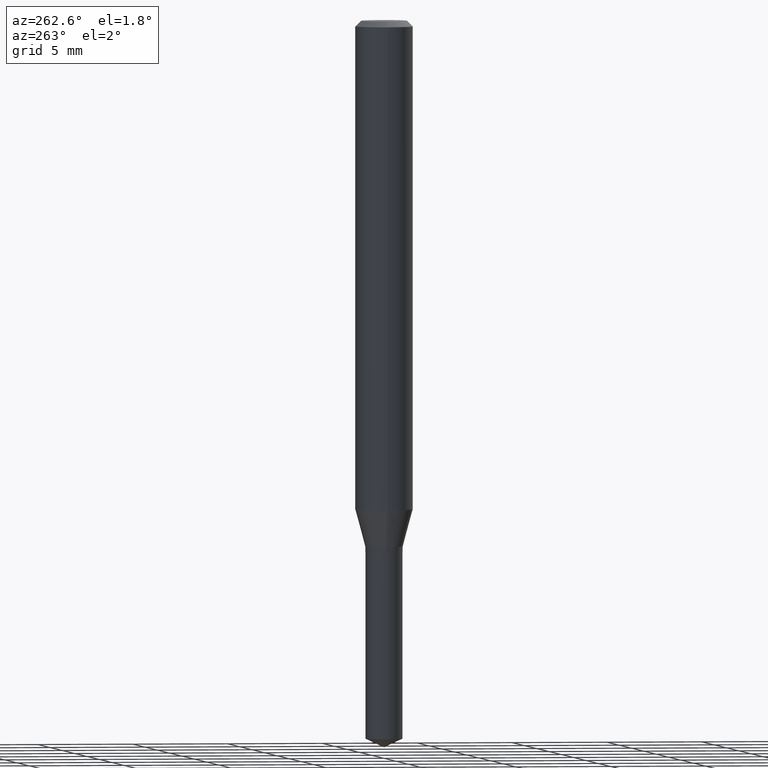
[diagram: clean part render]
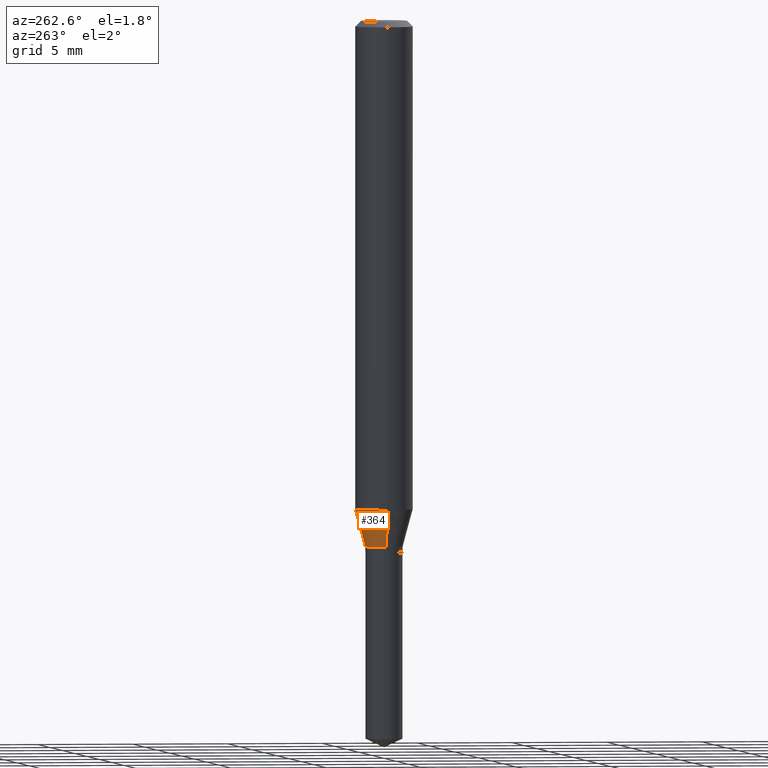
[diagram: same view with one face highlighted and labeled with its STEP entity id]
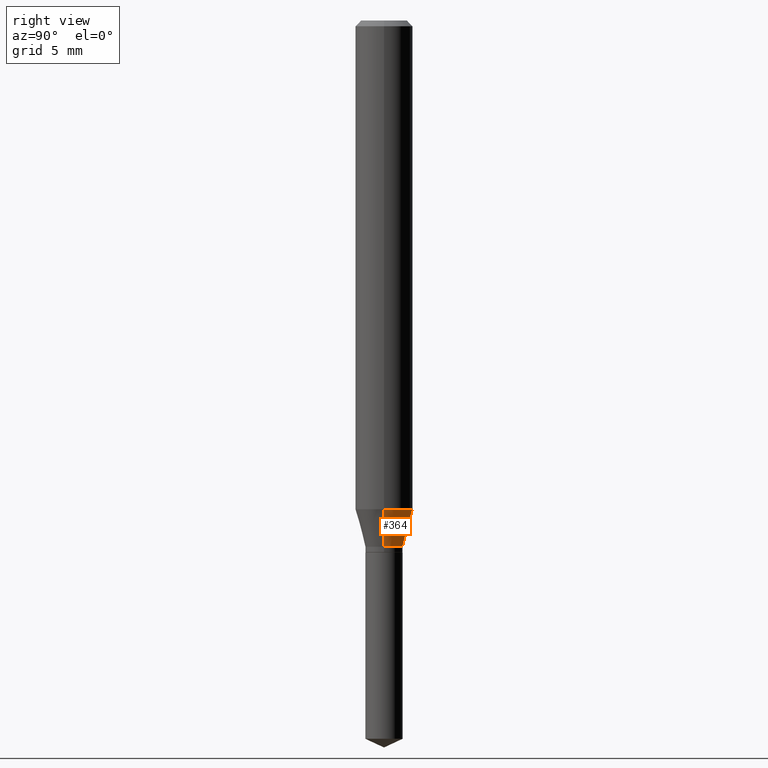
[diagram: same view with one face highlighted and labeled with its STEP entity id]
A machine part, auxiliary view. The second image highlights one B-rep face of the part: STEP entity #364.
A second angle (right view) of the same face is appended — the face is thin or edge-on in the first view.
In plain terms, the highlighted conical surface has half-angle 15 deg.
Its self-contained STEP definition (entity closure, byte-faithful):
#6 = DIRECTION ( 'NONE',  ( -2.445468806185136597E-29, 3.491481338843145583E-15, 1.000000000000000000 ) ) ;
#7 = LINE ( 'NONE', #43, #109 ) ;
#18 = VERTEX_POINT ( 'NONE', #154 ) ;
#38 = CONICAL_SURFACE ( 'NONE', #319, 0.03840000000000000357, 0.2617993877991499074 ) ;
#39 = EDGE_CURVE ( 'NONE', #18, #333, #65, .T. ) ;
#43 = CARTESIAN_POINT ( 'NONE',  ( -0.03840000000000000357, -3.508425879435247821E-15, -1.082999999999999963 ) ) ;
#65 = LINE ( 'NONE', #298, #487 ) ;
#75 = DIRECTION ( 'NONE',  ( 1.000000000000000000, -6.982962677686266711E-15, 0.000000000000000000 ) ) ;
#78 = EDGE_LOOP ( 'NONE', ( #288, #245, #180, #210 ) ) ;
#80 = CARTESIAN_POINT ( 'NONE',  ( 2.459978141446892264E-29, -3.512196824224644331E-15, -1.005933150823702382 ) ) ;
#109 = VECTOR ( 'NONE', #349, 39.37007874015748854 ) ;
#131 = CARTESIAN_POINT ( 'NONE',  ( -0.05905000000000011628, -3.092621338758304049E-15, -1.005933150823702382 ) ) ;
#149 = DIRECTION ( 'NONE',  ( 1.000000000000000000, -6.982962677686264344E-15, 0.000000000000000000 ) ) ;
#154 = CARTESIAN_POINT ( 'NONE',  ( 0.03840000000000000357, -4.049420056790279028E-15, -1.082999999999999963 ) ) ;
#163 = EDGE_CURVE ( 'NONE', #472, #469, #7, .T. ) ;
#180 = ORIENTED_EDGE ( 'NONE', *, *, #318, .F. ) ;
#210 = ORIENTED_EDGE ( 'NONE', *, *, #39, .F. ) ;
#225 = CIRCLE ( 'NONE', #461, 0.03840000000000000357 ) ;
#234 = DIRECTION ( 'NONE',  ( -2.445468806185136597E-29, 3.491481338843145583E-15, 1.000000000000000000 ) ) ;
#244 = FACE_OUTER_BOUND ( 'NONE', #78, .T. ) ;
#245 = ORIENTED_EDGE ( 'NONE', *, *, #163, .T. ) ;
#288 = ORIENTED_EDGE ( 'NONE', *, *, #347, .T. ) ;
#298 = CARTESIAN_POINT ( 'NONE',  ( 0.03840000000000000357, -4.049420056790279028E-15, -1.082999999999999963 ) ) ;
#318 = EDGE_CURVE ( 'NONE', #333, #469, #434, .T. ) ;
#319 = AXIS2_PLACEMENT_3D ( 'NONE', #447, #426, #352 ) ;
#333 = VERTEX_POINT ( 'NONE', #404 ) ;
#338 = DIRECTION ( 'NONE',  ( 0.2588190451025211836, 1.565188264969622559E-15, 0.9659258262890679791 ) ) ;
#347 = EDGE_CURVE ( 'NONE', #18, #472, #225, .T. ) ;
#349 = DIRECTION ( 'NONE',  ( -0.2588190451025211836, 5.211531920934547886E-15, 0.9659258262890679791 ) ) ;
#352 = DIRECTION ( 'NONE',  ( 1.000000000000000000, -6.982962677686264344E-15, 0.000000000000000000 ) ) ;
#364 = ADVANCED_FACE ( 'NONE', ( #244 ), #38, .T. ) ;
#375 = CARTESIAN_POINT ( 'NONE',  ( 2.648442717098502966E-29, -3.781274289967126614E-15, -1.082999999999999963 ) ) ;
#404 = CARTESIAN_POINT ( 'NONE',  ( 0.05905000000000011628, -3.924540770342018857E-15, -1.005933150823702382 ) ) ;
#426 = DIRECTION ( 'NONE',  ( -2.445468806185136597E-29, 3.491481338843145583E-15, 1.000000000000000000 ) ) ;
#434 = CIRCLE ( 'NONE', #453, 0.05905000000000011628 ) ;
#447 = CARTESIAN_POINT ( 'NONE',  ( 2.648442717098502966E-29, -3.781274289967126614E-15, -1.082999999999999963 ) ) ;
#453 = AXIS2_PLACEMENT_3D ( 'NONE', #80, #6, #75 ) ;
#461 = AXIS2_PLACEMENT_3D ( 'NONE', #375, #234, #149 ) ;
#469 = VERTEX_POINT ( 'NONE', #131 ) ;
#471 = CARTESIAN_POINT ( 'NONE',  ( -0.03840000000000000357, -3.527629026798885149E-15, -1.082999999999999963 ) ) ;
#472 = VERTEX_POINT ( 'NONE', #471 ) ;
#487 = VECTOR ( 'NONE', #338, 39.37007874015748854 ) ;